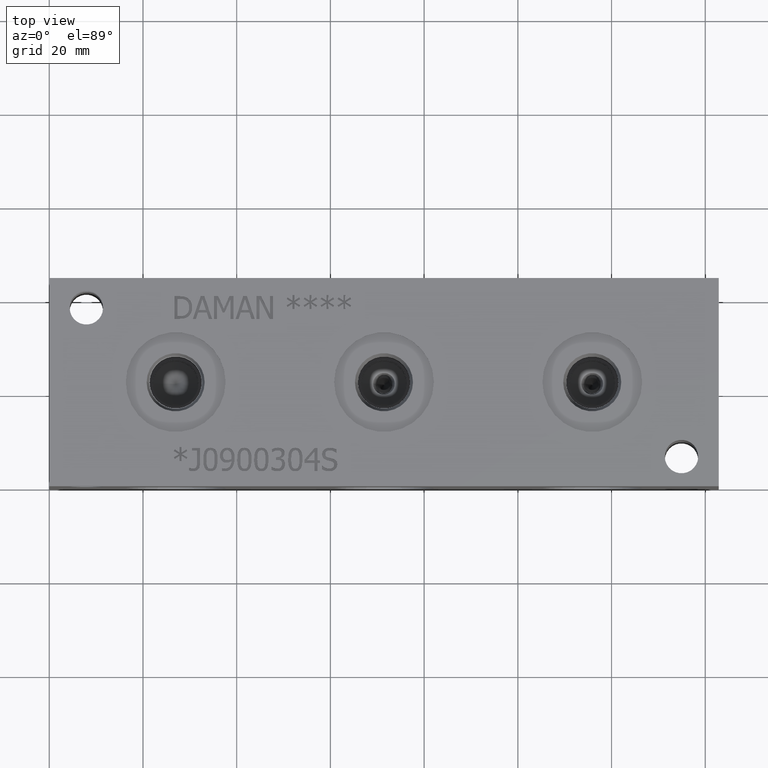
[diagram: clean part render]
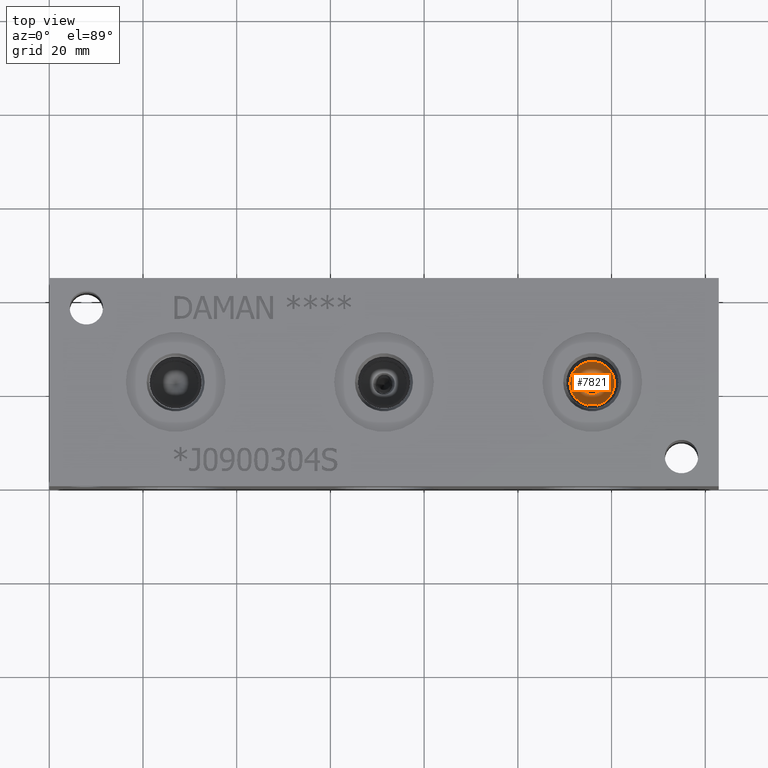
[diagram: same view with one face highlighted and labeled with its STEP entity id]
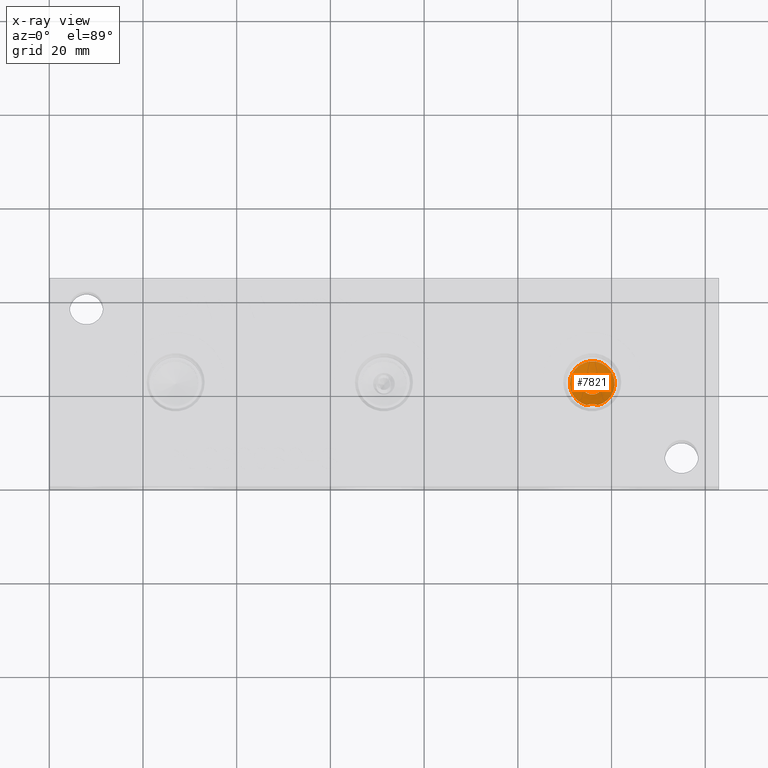
[diagram: x-ray of the same camera — body ghosted, the highlighted face saturated]
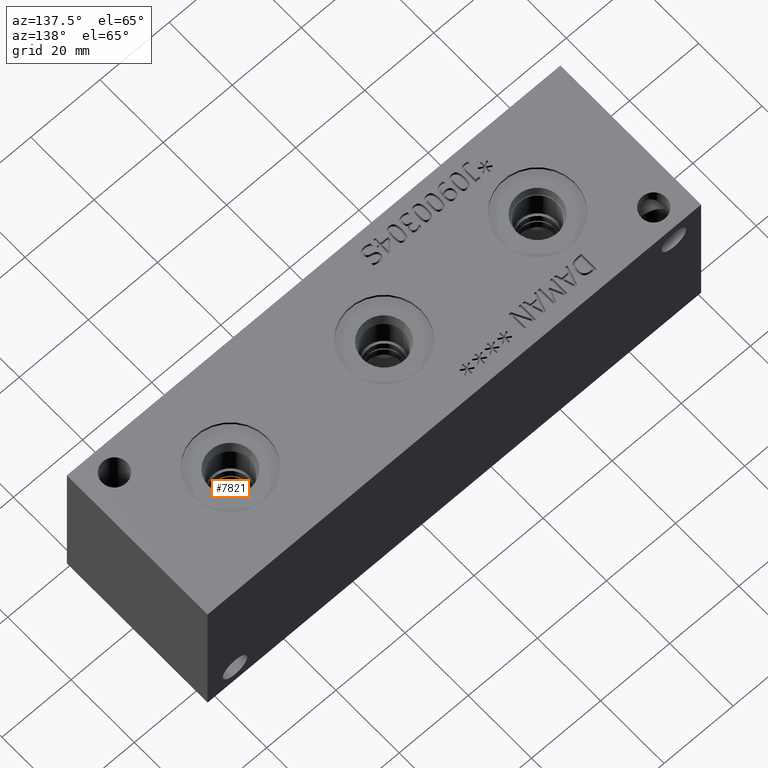
[diagram: same view with one face highlighted and labeled with its STEP entity id]
A machine part, top view. The second image highlights one B-rep face of the part: STEP entity #7821.
The next image is the same camera in x-ray: the body ghosted, the highlighted face saturated — about 0% of this face is hidden behind the body in this view.
A second angle (auxiliary view) of the same face is appended — the face is thin or edge-on in the first view.
In plain terms, the highlighted conical surface has half-angle 60 deg.
Its self-contained STEP definition (entity closure, byte-faithful):
#31=CONICAL_SURFACE('',#8210,2.38125,1.0471975511966);
#133=CIRCLE('',#8122,4.7625);
#134=CIRCLE('',#8123,4.7625);
#175=CIRCLE('',#8211,2.31996260976043);
#854=FACE_OUTER_BOUND('',#1295,.T.);
#1295=EDGE_LOOP('',(#6814,#6815,#6816,#6817,#6818,#6819));
#2034=LINE('',#13435,#2754);
#2754=VECTOR('',#9655,2.38125);
#3026=B_SPLINE_CURVE_WITH_KNOTS('',3,(#13236,#13237,#13238,#13239,#13240,
#13241),.UNSPECIFIED.,.F.,.F.,(4,2,4),(2.21516397589244,2.36004220970836,
2.50492044352427),.UNSPECIFIED.);
#3637=VERTEX_POINT('',#13230);
#3638=VERTEX_POINT('',#13232);
#3645=VERTEX_POINT('',#13262);
#3701=VERTEX_POINT('',#13434);
#4663=EDGE_CURVE('',#3637,#3638,#3026,.T.);
#4676=EDGE_CURVE('',#3638,#3645,#133,.T.);
#4677=EDGE_CURVE('',#3645,#3637,#134,.T.);
#4758=EDGE_CURVE('',#3645,#3701,#2034,.T.);
#4759=EDGE_CURVE('',#3701,#3701,#175,.T.);
#6814=ORIENTED_EDGE('',*,*,#4663,.T.);
#6815=ORIENTED_EDGE('',*,*,#4676,.T.);
#6816=ORIENTED_EDGE('',*,*,#4758,.T.);
#6817=ORIENTED_EDGE('',*,*,#4759,.F.);
#6818=ORIENTED_EDGE('',*,*,#4758,.F.);
#6819=ORIENTED_EDGE('',*,*,#4677,.T.);
#7821=ADVANCED_FACE('',(#854),#31,.F.);
#8122=AXIS2_PLACEMENT_3D('',#13264,#9451,#9452);
#8123=AXIS2_PLACEMENT_3D('',#13265,#9453,#9454);
#8210=AXIS2_PLACEMENT_3D('',#13433,#9653,#9654);
#8211=AXIS2_PLACEMENT_3D('',#13436,#9656,#9657);
#9451=DIRECTION('center_axis',(0.,0.,1.));
#9452=DIRECTION('ref_axis',(1.,0.,0.));
#9453=DIRECTION('center_axis',(0.,0.,1.));
#9454=DIRECTION('ref_axis',(1.,0.,0.));
#9653=DIRECTION('center_axis',(0.,0.,1.));
#9654=DIRECTION('ref_axis',(1.,0.,0.));
#9655=DIRECTION('',(0.866025403784439,1.06057523872491E-16,-0.5));
#9656=DIRECTION('center_axis',(0.,0.,1.));
#9657=DIRECTION('ref_axis',(1.,0.,0.));
#13230=CARTESIAN_POINT('',(114.653230435423,17.62183,26.82817));
#13232=CARTESIAN_POINT('',(117.096369564577,17.62183,26.82817));
#13236=CARTESIAN_POINT('Ctrl Pts',(114.653230435423,17.62183,26.82817));
#13237=CARTESIAN_POINT('Ctrl Pts',(115.00855766072,17.7408892500839,26.7091107499161));
#13238=CARTESIAN_POINT('Ctrl Pts',(115.391872553947,17.839478827585,26.610521172415));
#13239=CARTESIAN_POINT('Ctrl Pts',(116.357727446053,17.839478827585,26.610521172415));
#13240=CARTESIAN_POINT('Ctrl Pts',(116.74104233928,17.740889250084,26.709110749916));
#13241=CARTESIAN_POINT('Ctrl Pts',(117.096369564577,17.62183,26.82817));
#13262=CARTESIAN_POINT('',(111.1123,22.225,26.82817));
#13264=CARTESIAN_POINT('Origin',(115.8748,22.225,26.82817));
#13265=CARTESIAN_POINT('Origin',(115.8748,22.225,26.82817));
#13433=CARTESIAN_POINT('Origin',(115.8748,22.225,25.4533546714922));
#13434=CARTESIAN_POINT('',(113.55483739024,22.225,25.4179703802395));
#13435=CARTESIAN_POINT('',(113.49355,22.225,25.4533546714922));
#13436=CARTESIAN_POINT('Origin',(115.8748,22.225,25.4179703802395));